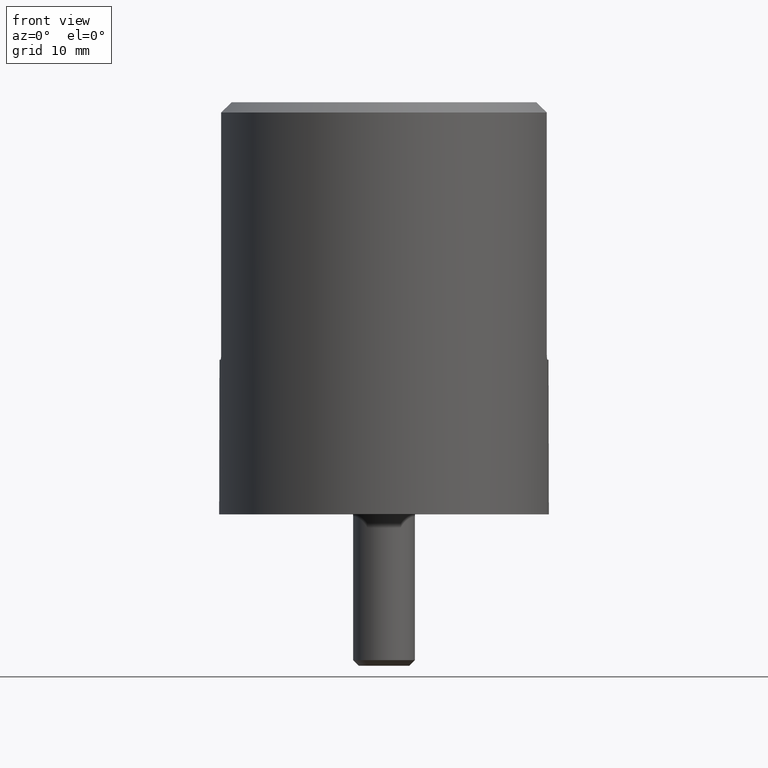
[diagram: clean part render]
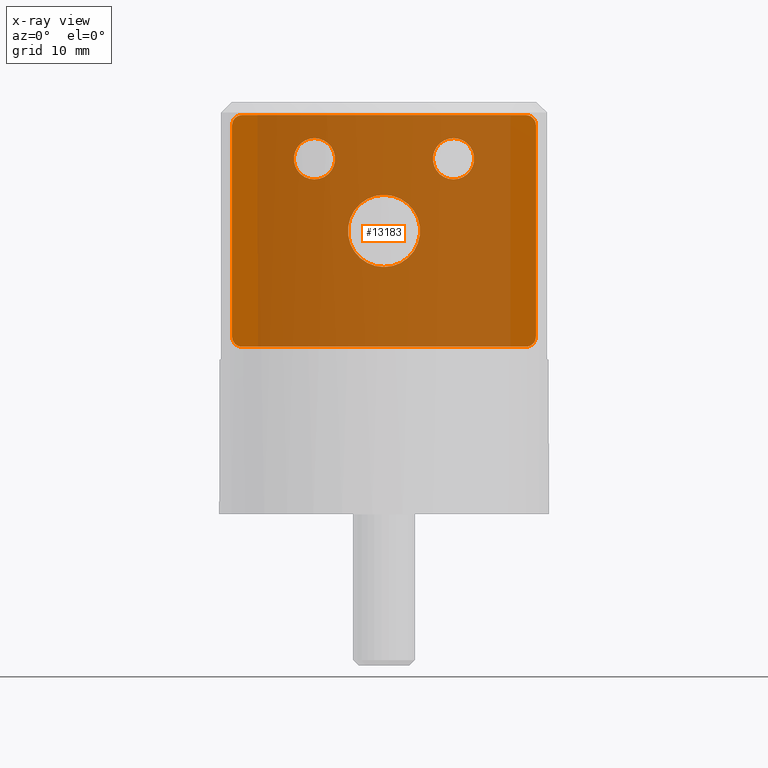
[diagram: x-ray — body ghosted, one internal face saturated and labeled with its STEP entity id]
A machine part, front view, then the same camera in x-ray: the body is ghosted and one INTERNAL B-rep face — a face not visible from any outside direction — is saturated and labeled: STEP entity #13183.
In plain terms, the highlighted planar face has unit normal (0, 1, 0).
Its self-contained STEP definition (entity closure, byte-faithful):
#58 = ORIENTED_EDGE ( 'NONE', *, *, #19562, .F. ) ;
#389 = CIRCLE ( 'NONE', #12371, 1.000000000000000888 ) ;
#394 = AXIS2_PLACEMENT_3D ( 'NONE', #10391, #1278, #2955 ) ;
#576 = CIRCLE ( 'NONE', #2301, 2.000000000000000000 ) ;
#1133 = LINE ( 'NONE', #1918, #14466 ) ;
#1278 = DIRECTION ( 'NONE',  ( 0.000000000000000000, -1.000000000000000000, 0.000000000000000000 ) ) ;
#1535 = VERTEX_POINT ( 'NONE', #6120 ) ;
#1540 = LINE ( 'NONE', #14244, #2013 ) ;
#1918 = CARTESIAN_POINT ( 'NONE',  ( -14.75000000000000000, 1.000000000000000000, 11.24999999999999822 ) ) ;
#2013 = VECTOR ( 'NONE', #3433, 1000.000000000000000 ) ;
#2157 = FACE_BOUND ( 'NONE', #14505, .T. ) ;
#2272 = EDGE_LOOP ( 'NONE', ( #58 ) ) ;
#2301 = AXIS2_PLACEMENT_3D ( 'NONE', #4208, #11586, #11721 ) ;
#2674 = EDGE_CURVE ( 'NONE', #12513, #10929, #1540, .T. ) ;
#2691 = CARTESIAN_POINT ( 'NONE',  ( 14.74999999999999645, 1.000000000000000000, -10.24999999999999289 ) ) ;
#2697 = EDGE_LOOP ( 'NONE', ( #12836, #3559, #15919, #4020, #7616, #7061, #12054, #9121 ) ) ;
#2955 = DIRECTION ( 'NONE',  ( 0.000000000000000000, 0.000000000000000000, -1.000000000000000000 ) ) ;
#3433 = DIRECTION ( 'NONE',  ( -1.541976423090495387E-16, 0.000000000000000000, -1.000000000000000000 ) ) ;
#3532 = LINE ( 'NONE', #18861, #9003 ) ;
#3559 = ORIENTED_EDGE ( 'NONE', *, *, #10652, .T. ) ;
#3571 = DIRECTION ( 'NONE',  ( 0.000000000000000000, 0.000000000000000000, -1.000000000000000000 ) ) ;
#3647 = CARTESIAN_POINT ( 'NONE',  ( -14.75000000000000355, 1.000000000000000000, -10.24999999999998579 ) ) ;
#3819 = EDGE_CURVE ( 'NONE', #12834, #12379, #14863, .T. ) ;
#4020 = ORIENTED_EDGE ( 'NONE', *, *, #6366, .T. ) ;
#4208 = CARTESIAN_POINT ( 'NONE',  ( -6.749999999999997335, 1.000000000000000000, 6.999999999999997335 ) ) ;
#4316 = CARTESIAN_POINT ( 'NONE',  ( -14.75000000000000355, 1.000000000000000000, -11.24999999999999112 ) ) ;
#4343 = CARTESIAN_POINT ( 'NONE',  ( 0.000000000000000000, 1.000000000000000000, 3.499999999999999556 ) ) ;
#4370 = CARTESIAN_POINT ( 'NONE',  ( -14.75000000000000000, 1.000000000000000000, 10.24999999999999822 ) ) ;
#4570 = EDGE_CURVE ( 'NONE', #17247, #11836, #3532, .T. ) ;
#5010 = DIRECTION ( 'NONE',  ( -0.000000000000000000, 1.000000000000000000, 0.000000000000000000 ) ) ;
#5977 = CARTESIAN_POINT ( 'NONE',  ( -13.74999999999999822, 1.000000000000000000, 10.24999999999999822 ) ) ;
#6120 = CARTESIAN_POINT ( 'NONE',  ( 6.750000000000002665, 1.000000000000000000, 4.999999999999995559 ) ) ;
#6366 = EDGE_CURVE ( 'NONE', #17684, #17247, #389, .T. ) ;
#6479 = AXIS2_PLACEMENT_3D ( 'NONE', #16286, #14877, #16349 ) ;
#6672 = FACE_BOUND ( 'NONE', #2272, .T. ) ;
#6736 = CIRCLE ( 'NONE', #6479, 3.499999999999999556 ) ;
#6740 = DIRECTION ( 'NONE',  ( -0.000000000000000000, 1.000000000000000000, 0.000000000000000000 ) ) ;
#6758 = VERTEX_POINT ( 'NONE', #4343 ) ;
#7061 = ORIENTED_EDGE ( 'NONE', *, *, #14821, .T. ) ;
#7391 = DIRECTION ( 'NONE',  ( 0.000000000000000000, 0.000000000000000000, -1.000000000000000000 ) ) ;
#7395 = AXIS2_PLACEMENT_3D ( 'NONE', #16722, #10386, #15048 ) ;
#7400 = FACE_OUTER_BOUND ( 'NONE', #2697, .T. ) ;
#7595 = DIRECTION ( 'NONE',  ( -0.000000000000000000, 1.000000000000000000, 0.000000000000000000 ) ) ;
#7616 = ORIENTED_EDGE ( 'NONE', *, *, #4570, .T. ) ;
#7846 = EDGE_CURVE ( 'NONE', #1535, #1535, #15606, .T. ) ;
#8107 = CARTESIAN_POINT ( 'NONE',  ( 13.74999999999999822, 1.000000000000000000, 10.24999999999999822 ) ) ;
#8123 = FACE_BOUND ( 'NONE', #14936, .T. ) ;
#9003 = VECTOR ( 'NONE', #14518, 1000.000000000000000 ) ;
#9068 = CARTESIAN_POINT ( 'NONE',  ( -6.749999999999997335, 1.000000000000000000, 4.999999999999997335 ) ) ;
#9091 = VERTEX_POINT ( 'NONE', #3647 ) ;
#9121 = ORIENTED_EDGE ( 'NONE', *, *, #12109, .T. ) ;
#9616 = DIRECTION ( 'NONE',  ( 0.000000000000000000, 0.000000000000000000, -1.000000000000000000 ) ) ;
#9727 = CARTESIAN_POINT ( 'NONE',  ( 13.74999999999999822, 1.000000000000000000, 11.24999999999999822 ) ) ;
#9841 = VERTEX_POINT ( 'NONE', #9068 ) ;
#10146 = ORIENTED_EDGE ( 'NONE', *, *, #7846, .F. ) ;
#10363 = CARTESIAN_POINT ( 'NONE',  ( -13.75000000000000178, 1.000000000000000000, -11.24999999999999112 ) ) ;
#10386 = DIRECTION ( 'NONE',  ( -0.000000000000000000, 1.000000000000000000, 0.000000000000000000 ) ) ;
#10391 = CARTESIAN_POINT ( 'NONE',  ( 0.000000000000000000, 1.000000000000000000, 0.000000000000000000 ) ) ;
#10444 = EDGE_CURVE ( 'NONE', #6758, #6758, #6736, .T. ) ;
#10652 = EDGE_CURVE ( 'NONE', #12379, #9091, #14818, .T. ) ;
#10929 = VERTEX_POINT ( 'NONE', #2691 ) ;
#11418 = CARTESIAN_POINT ( 'NONE',  ( -13.74999999999999822, 1.000000000000000000, 11.24999999999999822 ) ) ;
#11486 = AXIS2_PLACEMENT_3D ( 'NONE', #8107, #5010, #9616 ) ;
#11549 = ORIENTED_EDGE ( 'NONE', *, *, #10444, .F. ) ;
#11586 = DIRECTION ( 'NONE',  ( -0.000000000000000000, 1.000000000000000000, 0.000000000000000000 ) ) ;
#11721 = DIRECTION ( 'NONE',  ( 0.000000000000000000, 0.000000000000000000, -1.000000000000000000 ) ) ;
#11836 = VERTEX_POINT ( 'NONE', #9727 ) ;
#11983 = PLANE ( 'NONE',  #394 ) ;
#12054 = ORIENTED_EDGE ( 'NONE', *, *, #2674, .T. ) ;
#12109 = EDGE_CURVE ( 'NONE', #10929, #12834, #19575, .T. ) ;
#12371 = AXIS2_PLACEMENT_3D ( 'NONE', #5977, #7595, #7391 ) ;
#12379 = VERTEX_POINT ( 'NONE', #10363 ) ;
#12513 = VERTEX_POINT ( 'NONE', #19625 ) ;
#12804 = CARTESIAN_POINT ( 'NONE',  ( -13.75000000000000178, 1.000000000000000000, -10.24999999999999289 ) ) ;
#12834 = VERTEX_POINT ( 'NONE', #17873 ) ;
#12836 = ORIENTED_EDGE ( 'NONE', *, *, #3819, .T. ) ;
#13183 = ADVANCED_FACE ( 'NONE', ( #7400, #8123, #6672, #2157 ), #11983, .F. ) ;
#13423 = VECTOR ( 'NONE', #18098, 1000.000000000000000 ) ;
#14244 = CARTESIAN_POINT ( 'NONE',  ( 14.75000000000000000, 1.000000000000000000, 11.24999999999999822 ) ) ;
#14466 = VECTOR ( 'NONE', #16975, 1000.000000000000000 ) ;
#14505 = EDGE_LOOP ( 'NONE', ( #10146 ) ) ;
#14518 = DIRECTION ( 'NONE',  ( 1.000000000000000000, 0.000000000000000000, 0.000000000000000000 ) ) ;
#14528 = CIRCLE ( 'NONE', #11486, 1.000000000000000888 ) ;
#14818 = CIRCLE ( 'NONE', #18872, 0.9999999999999991118 ) ;
#14821 = EDGE_CURVE ( 'NONE', #11836, #12513, #14528, .T. ) ;
#14863 = LINE ( 'NONE', #4316, #13423 ) ;
#14877 = DIRECTION ( 'NONE',  ( 0.000000000000000000, 1.000000000000000000, 0.000000000000000000 ) ) ;
#14936 = EDGE_LOOP ( 'NONE', ( #11549 ) ) ;
#15048 = DIRECTION ( 'NONE',  ( -1.734723475976805517E-15, 0.000000000000000000, -1.000000000000000000 ) ) ;
#15606 = CIRCLE ( 'NONE', #17744, 2.000000000000000000 ) ;
#15919 = ORIENTED_EDGE ( 'NONE', *, *, #18699, .T. ) ;
#16286 = CARTESIAN_POINT ( 'NONE',  ( 0.000000000000000000, 1.000000000000000000, 0.000000000000000000 ) ) ;
#16349 = DIRECTION ( 'NONE',  ( 0.000000000000000000, 0.000000000000000000, 1.000000000000000000 ) ) ;
#16722 = CARTESIAN_POINT ( 'NONE',  ( 13.74999999999999467, 1.000000000000000000, -10.25000000000000178 ) ) ;
#16975 = DIRECTION ( 'NONE',  ( 1.541976423090496126E-16, -0.000000000000000000, 1.000000000000000000 ) ) ;
#17247 = VERTEX_POINT ( 'NONE', #11418 ) ;
#17370 = DIRECTION ( 'NONE',  ( 0.000000000000000000, 0.000000000000000000, -1.000000000000000000 ) ) ;
#17437 = DIRECTION ( 'NONE',  ( -0.000000000000000000, 1.000000000000000000, 0.000000000000000000 ) ) ;
#17684 = VERTEX_POINT ( 'NONE', #4370 ) ;
#17744 = AXIS2_PLACEMENT_3D ( 'NONE', #18819, #17437, #17370 ) ;
#17873 = CARTESIAN_POINT ( 'NONE',  ( 13.74999999999999467, 1.000000000000000000, -11.25000000000000178 ) ) ;
#18098 = DIRECTION ( 'NONE',  ( -1.000000000000000000, -0.000000000000000000, 3.528251137579946599E-16 ) ) ;
#18699 = EDGE_CURVE ( 'NONE', #9091, #17684, #1133, .T. ) ;
#18819 = CARTESIAN_POINT ( 'NONE',  ( 6.750000000000002665, 1.000000000000000000, 6.999999999999995559 ) ) ;
#18861 = CARTESIAN_POINT ( 'NONE',  ( -14.75000000000000000, 1.000000000000000000, 11.24999999999999822 ) ) ;
#18872 = AXIS2_PLACEMENT_3D ( 'NONE', #12804, #6740, #3571 ) ;
#19562 = EDGE_CURVE ( 'NONE', #9841, #9841, #576, .T. ) ;
#19575 = CIRCLE ( 'NONE', #7395, 1.000000000000000888 ) ;
#19625 = CARTESIAN_POINT ( 'NONE',  ( 14.75000000000000000, 1.000000000000000000, 10.24999999999999822 ) ) ;